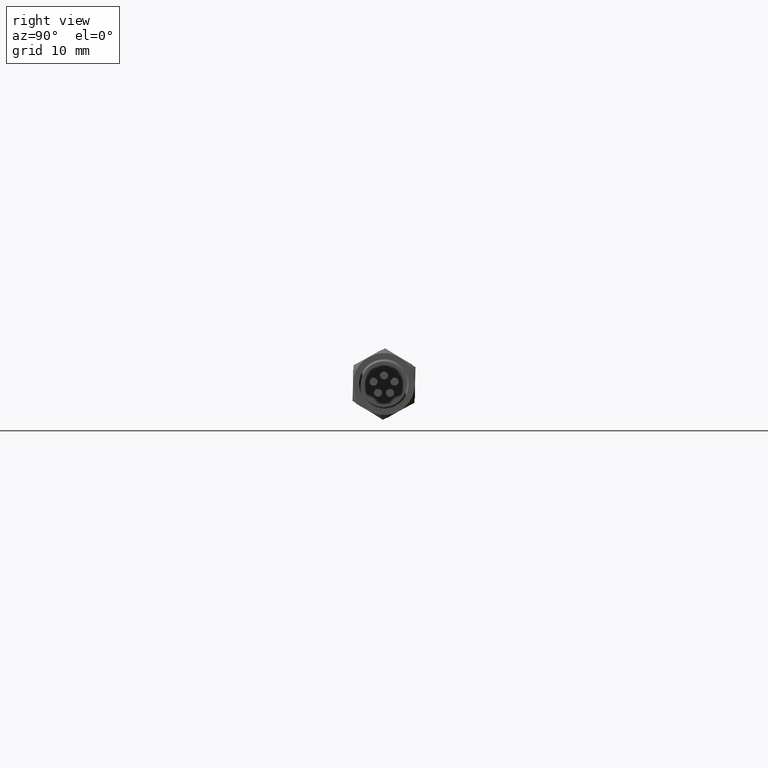
[diagram: clean part render]
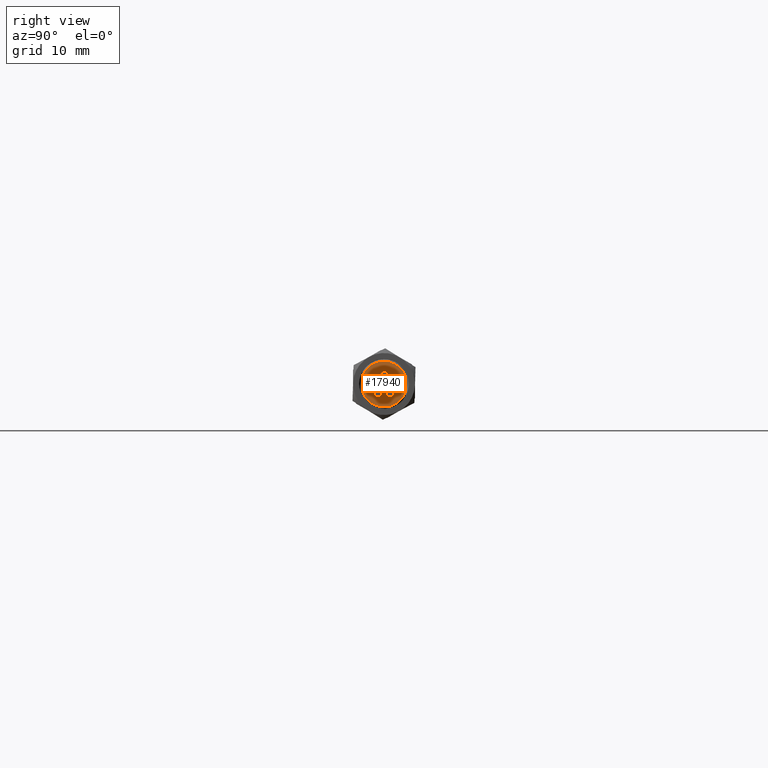
[diagram: same view with one face highlighted and labeled with its STEP entity id]
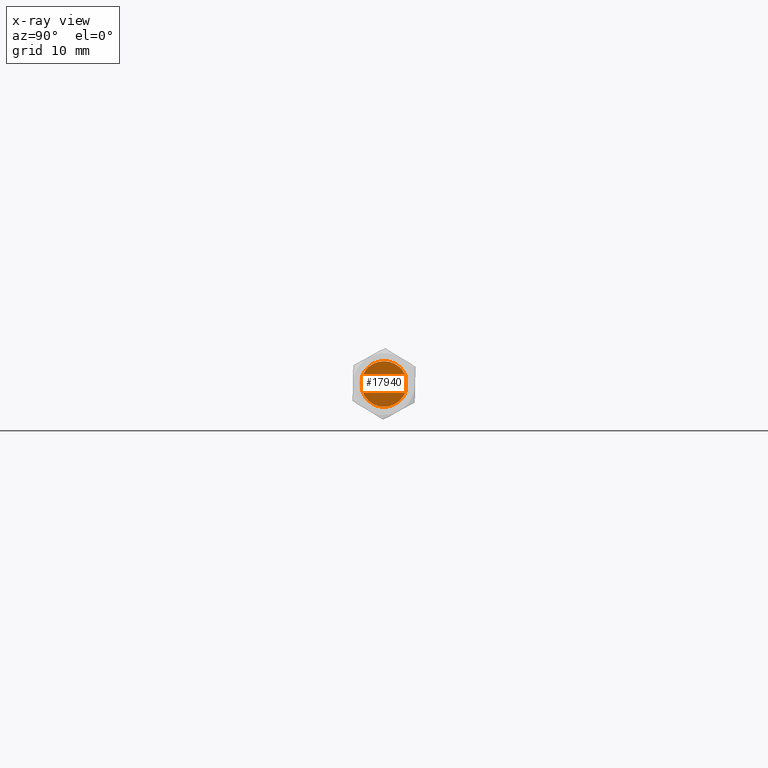
[diagram: x-ray of the same camera — body ghosted, the highlighted face saturated]
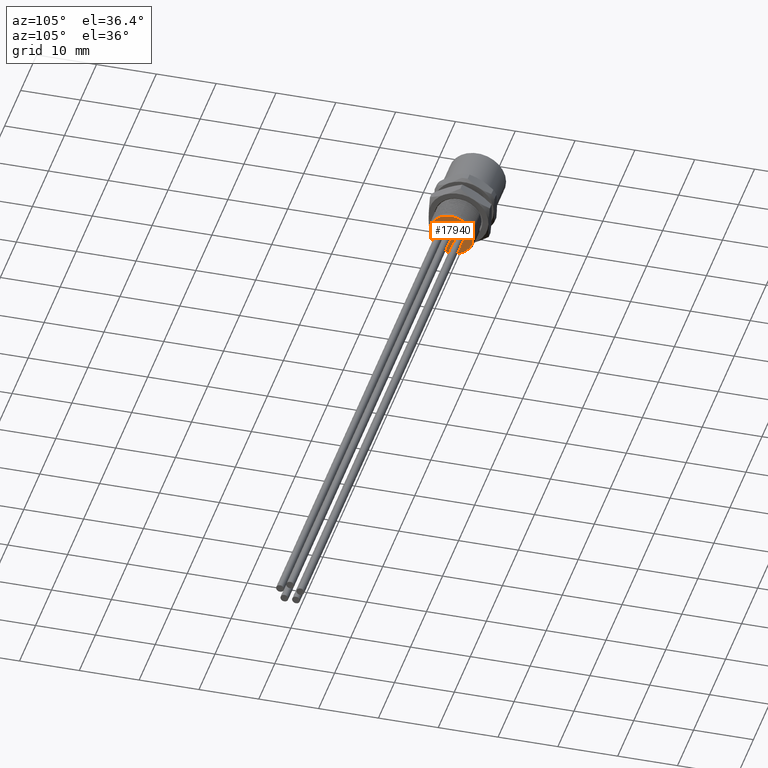
[diagram: same view with one face highlighted and labeled with its STEP entity id]
A machine part, right view. The second image highlights one B-rep face of the part: STEP entity #17940.
The next image is the same camera in x-ray: the body ghosted, the highlighted face saturated — about 16% of this face is hidden behind the body in this view.
A second angle (auxiliary view) of the same face is appended — the face is thin or edge-on in the first view.
In plain terms, the highlighted planar face has unit normal (1, 0, 0).
Its self-contained STEP definition (entity closure, byte-faithful):
#7299=DIRECTION('',(0.E0,0.E0,1.E0));
#7300=VECTOR('',#7299,9.448818897638E-2);
#7301=CARTESIAN_POINT('',(3.858267716535E-1,-1.377952755906E-1,
-4.724409448819E-2));
#7302=LINE('',#7301,#7300);
#7303=CARTESIAN_POINT('',(3.858267716535E-1,1.011843119084E-1,
1.047915906106E-1));
#7304=CARTESIAN_POINT('',(3.858267716535E-1,9.694228583541E-2,
1.086178733051E-1));
#7305=CARTESIAN_POINT('',(3.858267716535E-1,8.827238271377E-2,
1.156607917017E-1));
#7306=CARTESIAN_POINT('',(3.858267716535E-1,7.492817152147E-2,
1.243611386167E-1));
#7307=CARTESIAN_POINT('',(3.858267716535E-1,6.084563898258E-2,
1.315866529659E-1));
#7308=CARTESIAN_POINT('',(3.858267716535E-1,4.619256283095E-2,
1.372467505846E-1));
#7309=CARTESIAN_POINT('',(3.858267716535E-1,3.106811209450E-2,
1.413270652337E-1));
#7310=CARTESIAN_POINT('',(3.858267716535E-1,1.562314099251E-2,
1.437897248707E-1));
#7311=CARTESIAN_POINT('',(3.858267716535E-1,1.841320283248E-6,
1.446140589935E-1));
#7312=CARTESIAN_POINT('',(3.858267716535E-1,-1.561933104172E-2,1.437901444E-1));
#7313=CARTESIAN_POINT('',(3.858267716535E-1,-3.106549341995E-2,
1.413276663278E-1));
#7314=CARTESIAN_POINT('',(3.858267716535E-1,-4.619059148507E-2,
1.372474055645E-1));
#7315=CARTESIAN_POINT('',(3.858267716535E-1,-6.084390826851E-2,
1.315874346148E-1));
#7316=CARTESIAN_POINT('',(3.858267716535E-1,-7.492667710367E-2,
1.243620138710E-1));
#7317=CARTESIAN_POINT('',(3.858267716535E-1,-8.827128497973E-2,
1.156616262194E-1));
#7318=CARTESIAN_POINT('',(3.858267716535E-1,-9.694188841913E-2,
1.086182317723E-1));
#7319=CARTESIAN_POINT('',(3.858267716535E-1,-1.011843119084E-1,
1.047915906106E-1));
#7321=CARTESIAN_POINT('',(3.858267716535E-1,0.E0,0.E0));
#7322=DIRECTION('',(-1.E0,0.E0,0.E0));
#7323=DIRECTION('',(0.E0,6.946166276958E-1,7.193801085160E-1));
#7324=AXIS2_PLACEMENT_3D('',#7321,#7322,#7323);
#7326=DIRECTION('',(0.E0,0.E0,1.E0));
#7327=VECTOR('',#7326,9.448818897638E-2);
#7328=CARTESIAN_POINT('',(3.858267716535E-1,1.377952755906E-1,
-4.724409448819E-2));
#7329=LINE('',#7328,#7327);
#7382=CARTESIAN_POINT('',(3.858267716535E-1,0.E0,0.E0));
#7383=DIRECTION('',(1.E0,0.E0,0.E0));
#7384=DIRECTION('',(0.E0,-6.946166276956E-1,7.193801085162E-1));
#7385=AXIS2_PLACEMENT_3D('',#7382,#7383,#7384);
#7394=CARTESIAN_POINT('',(3.858267716535E-1,0.E0,0.E0));
#7395=DIRECTION('',(1.E0,0.E0,0.E0));
#7396=DIRECTION('',(0.E0,-9.459459459459E-1,-3.243243243243E-1));
#7397=AXIS2_PLACEMENT_3D('',#7394,#7395,#7396);
#9657=VERTEX_POINT('',#7303);
#9658=VERTEX_POINT('',#7319);
#9668=CARTESIAN_POINT('',(3.858267716535E-1,-1.377952755906E-1,
-4.724409448819E-2));
#9669=CARTESIAN_POINT('',(3.858267716535E-1,-1.377952755906E-1,
4.724409448819E-2));
#9670=VERTEX_POINT('',#9668);
#9671=VERTEX_POINT('',#9669);
#9672=CARTESIAN_POINT('',(3.858267716535E-1,1.377952755906E-1,
-4.724409448819E-2));
#9673=CARTESIAN_POINT('',(3.858267716535E-1,1.377952755906E-1,
4.724409448819E-2));
#9674=VERTEX_POINT('',#9672);
#9675=VERTEX_POINT('',#9673);
#17925=CARTESIAN_POINT('',(3.858267716535E-1,0.E0,0.E0));
#17926=DIRECTION('',(1.E0,0.E0,0.E0));
#17927=DIRECTION('',(0.E0,-1.E0,0.E0));
#17928=AXIS2_PLACEMENT_3D('',#17925,#17926,#17927);
#17929=PLANE('',#17928);
#17930=ORIENTED_EDGE('',*,*,#10468,.T.);
#17932=ORIENTED_EDGE('',*,*,#17931,.F.);
#17933=ORIENTED_EDGE('',*,*,#17880,.F.);
#17934=ORIENTED_EDGE('',*,*,#17918,.T.);
#17935=ORIENTED_EDGE('',*,*,#14697,.F.);
#17937=ORIENTED_EDGE('',*,*,#17936,.F.);
#17938=EDGE_LOOP('',(#17930,#17932,#17933,#17934,#17935,#17937));
#17939=FACE_OUTER_BOUND('',#17938,.F.);
#17940=ADVANCED_FACE('',(#17939),#17929,.T.);
#7320=B_SPLINE_CURVE_WITH_KNOTS('',3,(#7303,#7304,#7305,#7306,#7307,#7308,#7309,
#7310,#7311,#7312,#7313,#7314,#7315,#7316,#7317,#7318,#7319),.UNSPECIFIED.,.F.,
.F.,(4,1,1,1,1,1,1,1,1,1,1,1,1,1,4),(0.E0,7.142857142857E-2,1.428571428571E-1,
2.142857142857E-1,2.857142857143E-1,3.571428571429E-1,4.285714285714E-1,5.E-1,
5.714285714286E-1,6.428571428571E-1,7.142857142857E-1,7.857142857143E-1,
8.571428571429E-1,9.285714285714E-1,1.E0),.UNSPECIFIED.);
#7325=CIRCLE('',#7324,1.456692913386E-1);
#7386=CIRCLE('',#7385,1.456692913386E-1);
#7398=CIRCLE('',#7397,1.456692913386E-1);
#10468=EDGE_CURVE('',#9670,#9671,#7302,.T.);
#14697=EDGE_CURVE('',#9674,#9675,#7329,.T.);
#17880=EDGE_CURVE('',#9657,#9658,#7320,.T.);
#17918=EDGE_CURVE('',#9657,#9675,#7325,.T.);
#17931=EDGE_CURVE('',#9658,#9671,#7386,.T.);
#17936=EDGE_CURVE('',#9670,#9674,#7398,.T.);